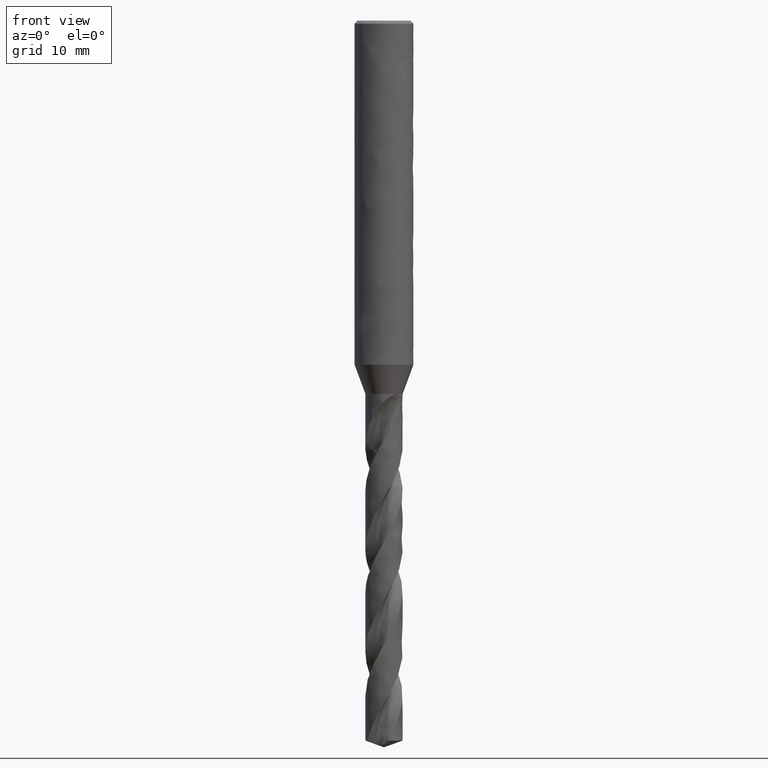
[diagram: clean part render]
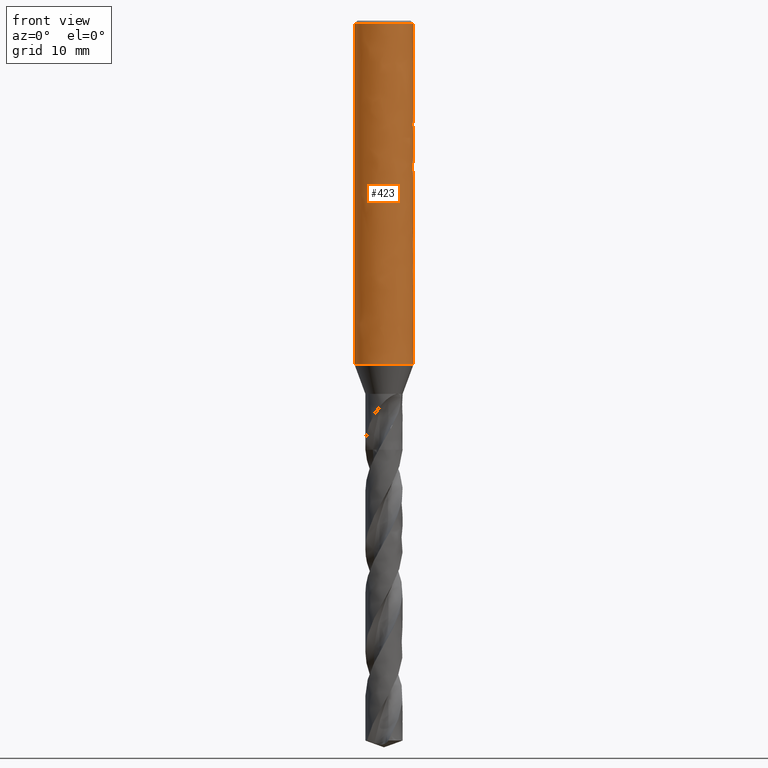
[diagram: same view with one face highlighted and labeled with its STEP entity id]
A machine part, front view. The second image highlights one B-rep face of the part: STEP entity #423.
In plain terms, the highlighted face is a freeform B-spline surface patch.
Its self-contained STEP definition (entity closure, byte-faithful):
#268 = VERTEX_POINT('', #269);
#269 = CARTESIAN_POINT('', (-3., 2.32823726219899E-15, -35.023));
#275 = EDGE_CURVE('', #268, #268, #276, .T.);
#276 = CIRCLE('', #277, 3.);
#277 = AXIS2_PLACEMENT_3D('', #278, #279, #280);
#278 = CARTESIAN_POINT('', (1.31315217170416E-31, 2.14454024232689E-15, -35.023));
#279 = DIRECTION('', (3.74939945665464E-33, 6.12323399573677E-17, -1.));
#280 = DIRECTION('', (-1., 6.12323399573677E-17, 0.));
#372 = VERTEX_POINT('', #373);
#373 = CARTESIAN_POINT('', (-3., 2.02066721859313E-16, -0.299999999999997));
#389 = EDGE_CURVE('', #372, #372, #390, .T.);
#390 = CIRCLE('', #391, 3.);
#391 = AXIS2_PLACEMENT_3D('', #392, #393, #394);
#392 = CARTESIAN_POINT('', (1.1248198369964E-33, 1.83697019872104E-17, -0.299999999999997));
#393 = DIRECTION('', (3.74939945665464E-33, 6.12323399573677E-17, -1.));
#394 = DIRECTION('', (-1., 6.12323399573677E-17, 0.));
#423 = ADVANCED_FACE('', (#424, #435), #606, .T.);
#424 = FACE_OUTER_BOUND('', #425, .T.);
#425 = EDGE_LOOP('', (#426, #432, #433, #434));
#426 = ORIENTED_EDGE('', *, *, #427, .T.);
#427 = EDGE_CURVE('', #268, #372, #428, .T.);
#428 = LINE('', #429, #430);
#429 = CARTESIAN_POINT('', (-3., 2.32823726219899E-15, -35.023));
#430 = VECTOR('', #431, 34.723);
#431 = DIRECTION('', (0., -2.12617054033968E-15, 34.723));
#432 = ORIENTED_EDGE('', *, *, #389, .T.);
#433 = ORIENTED_EDGE('', *, *, #427, .F.);
#434 = ORIENTED_EDGE('', *, *, #275, .F.);
#435 = FACE_BOUND('', #436, .T.);
#436 = EDGE_LOOP('', (#437, #517, #525, #600));
#437 = ORIENTED_EDGE('', *, *, #438, .F.);
#438 = EDGE_CURVE('', #439, #441, #443, .T.);
#439 = VERTEX_POINT('', #440);
#440 = CARTESIAN_POINT('', (-2.14242852856285, 2.1, -15.9));
#441 = VERTEX_POINT('', #442);
#442 = CARTESIAN_POINT('', (2.14242852856286, 2.1, -15.9));
#443 = B_SPLINE_CURVE_WITH_KNOTS('', 3, (#444, #445, #446, #447, #448, #449, #450, #451, #452, #453, #454, #455, #456, #457, #458, #459, #460, #461, #462, #463, #464, #465, #466, #467, #468, #469, #470, #471, #472, #473, #474, #475, #476, #477, #478, #479, #480, #481, #482, #483, #484, #485, #486, #487, #488, #489, #490, #491, #492, #493, #494, #495, #496, #497, #498, #499, #500, #501, #502, #503, #504, #505, #506, #507, #508, #509, #510, #511, #512, #513, #514, #515, #516), .UNSPECIFIED., .F., .U., (4, 3, 3, 3, 3, 3, 3, 3, 3, 3, 3, 3, 3, 3, 3, 3, 3, 3, 3, 3, 3, 3, 3, 3, 4), (0., 0.226532141220102, 0.522486989651014, 0.818712617000363, 1.01613164123477, 1.21365653787484, 1.41130126070876, 1.60907935009336, 1.80700249001341, 2.00507870652317, 2.20331049885992, 2.40169339368014, 2.59896230886553, 2.79623122405091, 2.99461411887113, 3.19284591120788, 3.39092212771765, 3.58884526763769, 3.78662335702229, 3.98426807985621, 4.18179297649628, 4.37921200073069, 4.67543762808004, 4.97139247651095, 5.19792461773105), .UNSPECIFIED.);
#444 = CARTESIAN_POINT('', (-2.14242852856285, 2.1, -15.9));
#445 = CARTESIAN_POINT('', (-2.09966946167759, 2.14362297369034, -15.8556089394693));
#446 = CARTESIAN_POINT('', (-2.05511554936735, 2.1864112283916, -15.8120672951529));
#447 = CARTESIAN_POINT('', (-2.0087677833036, 2.22819478339795, -15.7695480406738));
#448 = CARTESIAN_POINT('', (-1.94821634893922, 2.28278326528933, -15.71399839793));
#449 = CARTESIAN_POINT('', (-1.88451279376244, 2.33573606973675, -15.6601132326456));
#450 = CARTESIAN_POINT('', (-1.81770907332823, 2.38661553768947, -15.6083379099064));
#451 = CARTESIAN_POINT('', (-1.75084423195188, 2.43754155695696, -15.5565152162052));
#452 = CARTESIAN_POINT('', (-1.6807436866328, 2.48648668451198, -15.5067082925553));
#453 = CARTESIAN_POINT('', (-1.60754910566601, 2.53294016369761, -15.4594368887067));
#454 = CARTESIAN_POINT('', (-1.55876871187291, 2.56389899941746, -15.4279329486004));
#455 = CARTESIAN_POINT('', (-1.5085561938224, 2.59378846644904, -15.3975172059771));
#456 = CARTESIAN_POINT('', (-1.45698599487322, 2.6224400490275, -15.3683611437249));
#457 = CARTESIAN_POINT('', (-1.40538813971895, 2.65110699695379, -15.3391894455812));
#458 = CARTESIAN_POINT('', (-1.35237136818211, 2.67856731294511, -15.311245625015));
#459 = CARTESIAN_POINT('', (-1.29804490816719, 2.70464034880449, -15.2847135109673));
#460 = CARTESIAN_POINT('', (-1.24368549163368, 2.7307292015695, -15.2581653015195));
#461 = CARTESIAN_POINT('', (-1.18794354651529, 2.75546251726231, -15.2329964966177));
#462 = CARTESIAN_POINT('', (-1.13097137564117, 2.77865142604832, -15.2093992916021));
#463 = CARTESIAN_POINT('', (-1.07396076113039, 2.80185598222798, -15.1857861636831));
#464 = CARTESIAN_POINT('', (-1.01563414958426, 2.82354738172838, -15.1637128351876));
#465 = CARTESIAN_POINT('', (-0.95619479969747, 2.84353503671602, -15.143373249704));
#466 = CARTESIAN_POINT('', (-0.89671185696602, 2.86353735065839, -15.1230187471597));
#467 = CARTESIAN_POINT('', (-0.836016614422422, 2.88186535336629, -15.1043680361057));
#468 = CARTESIAN_POINT('', (-0.774369168024391, 2.89833614192924, -15.087607239896));
#469 = CARTESIAN_POINT('', (-0.712674042608821, 2.91481966923584, -15.0708334806465));
#470 = CARTESIAN_POINT('', (-0.649913305064561, 2.92947198918526, -15.0559231715418));
#471 = CARTESIAN_POINT('', (-0.586405693294024, 2.94212990244693, -15.0430423854271));
#472 = CARTESIAN_POINT('', (-0.522848200475703, 2.95479775766609, -15.030151482303));
#473 = CARTESIAN_POINT('', (-0.458417641638557, 2.96549204170255, -15.0192688998049));
#474 = CARTESIAN_POINT('', (-0.393487032405311, 2.97408270821927, -15.010526974047));
#475 = CARTESIAN_POINT('', (-0.32850692971699, 2.98267992298454, -15.0017783847429));
#476 = CARTESIAN_POINT('', (-0.262890170542841, 2.98918754384691, -14.9951561816426));
#477 = CARTESIAN_POINT('', (-0.197052250671389, 2.99352140638837, -14.9907460110803));
#478 = CARTESIAN_POINT('', (-0.131584030526332, 2.99783093298788, -14.9863606049525));
#479 = CARTESIAN_POINT('', (-0.065756305061796, 3., -14.9841533463251));
#480 = CARTESIAN_POINT('', (9.18485099360515E-17, 3., -14.9841533463251));
#481 = CARTESIAN_POINT('', (0.0657563050617961, 3., -14.9841533463251));
#482 = CARTESIAN_POINT('', (0.131584030526332, 2.99783093298788, -14.9863606049525));
#483 = CARTESIAN_POINT('', (0.197052250671389, 2.99352140638837, -14.9907460110803));
#484 = CARTESIAN_POINT('', (0.262890170542842, 2.98918754384691, -14.9951561816426));
#485 = CARTESIAN_POINT('', (0.328506929716991, 2.98267992298454, -15.0017783847429));
#486 = CARTESIAN_POINT('', (0.393487032405312, 2.97408270821927, -15.010526974047));
#487 = CARTESIAN_POINT('', (0.458417641638557, 2.96549204170255, -15.0192688998049));
#488 = CARTESIAN_POINT('', (0.522848200475705, 2.95479775766609, -15.030151482303));
#489 = CARTESIAN_POINT('', (0.586405693294026, 2.94212990244693, -15.0430423854271));
#490 = CARTESIAN_POINT('', (0.649913305064563, 2.92947198918526, -15.0559231715418));
#491 = CARTESIAN_POINT('', (0.712674042608822, 2.91481966923584, -15.0708334806465));
#492 = CARTESIAN_POINT('', (0.774369168024392, 2.89833614192924, -15.087607239896));
#493 = CARTESIAN_POINT('', (0.836016614422423, 2.88186535336629, -15.1043680361057));
#494 = CARTESIAN_POINT('', (0.896711856966021, 2.86353735065839, -15.1230187471597));
#495 = CARTESIAN_POINT('', (0.95619479969747, 2.84353503671602, -15.143373249704));
#496 = CARTESIAN_POINT('', (1.01563414958426, 2.82354738172838, -15.1637128351876));
#497 = CARTESIAN_POINT('', (1.07396076113039, 2.80185598222798, -15.1857861636831));
#498 = CARTESIAN_POINT('', (1.13097137564117, 2.77865142604832, -15.2093992916021));
#499 = CARTESIAN_POINT('', (1.18794354651529, 2.75546251726231, -15.2329964966177));
#500 = CARTESIAN_POINT('', (1.24368549163368, 2.7307292015695, -15.2581653015195));
#501 = CARTESIAN_POINT('', (1.29804490816719, 2.7046403488045, -15.2847135109673));
#502 = CARTESIAN_POINT('', (1.35237136818211, 2.67856731294511, -15.311245625015));
#503 = CARTESIAN_POINT('', (1.40538813971894, 2.65110699695378, -15.3391894455811));
#504 = CARTESIAN_POINT('', (1.45698599487322, 2.6224400490275, -15.3683611437249));
#505 = CARTESIAN_POINT('', (1.5085561938224, 2.59378846644904, -15.3975172059771));
#506 = CARTESIAN_POINT('', (1.5587687118729, 2.56389899941746, -15.4279329486004));
#507 = CARTESIAN_POINT('', (1.60754910566601, 2.53294016369761, -15.4594368887067));
#508 = CARTESIAN_POINT('', (1.6807436866328, 2.48648668451198, -15.5067082925553));
#509 = CARTESIAN_POINT('', (1.75084423195188, 2.43754155695696, -15.5565152162052));
#510 = CARTESIAN_POINT('', (1.81770907332823, 2.38661553768947, -15.6083379099064));
#511 = CARTESIAN_POINT('', (1.88451279376244, 2.33573606973675, -15.6601132326456));
#512 = CARTESIAN_POINT('', (1.94821634893922, 2.28278326528933, -15.71399839793));
#513 = CARTESIAN_POINT('', (2.0087677833036, 2.22819478339795, -15.7695480406737));
#514 = CARTESIAN_POINT('', (2.05511554936736, 2.1864112283916, -15.8120672951529));
#515 = CARTESIAN_POINT('', (2.09966946167759, 2.14362297369034, -15.8556089394693));
#516 = CARTESIAN_POINT('', (2.14242852856286, 2.1, -15.9));
#517 = ORIENTED_EDGE('', *, *, #518, .T.);
#518 = EDGE_CURVE('', #439, #519, #521, .T.);
#519 = VERTEX_POINT('', #520);
#520 = CARTESIAN_POINT('', (-2.14242852856285, 2.1, -20.1));
#521 = LINE('', #522, #523);
#522 = CARTESIAN_POINT('', (-2.14242852856285, 2.1, -15.9));
#523 = VECTOR('', #524, 4.2);
#524 = DIRECTION('', (0., 0., -4.2));
#525 = ORIENTED_EDGE('', *, *, #526, .T.);
#526 = EDGE_CURVE('', #519, #527, #529, .T.);
#527 = VERTEX_POINT('', #528);
#528 = CARTESIAN_POINT('', (2.14242852856286, 2.1, -20.1));
#529 = B_SPLINE_CURVE_WITH_KNOTS('', 3, (#530, #531, #532, #533, #534, #535, #536, #537, #538, #539, #540, #541, #542, #543, #544, #545, #546, #547, #548, #549, #550, #551, #552, #553, #554, #555, #556, #557, #558, #559, #560, #561, #562, #563, #564, #565, #566, #567, #568, #569, #570, #571, #572, #573, #574, #575, #576, #577, #578, #579, #580, #581, #582, #583, #584, #585, #586, #587, #588, #589, #590, #591, #592, #593, #594, #595, #596, #597, #598, #599), .UNSPECIFIED., .F., .U., (4, 3, 3, 3, 3, 3, 3, 3, 3, 3, 3, 3, 3, 3, 3, 3, 3, 3, 3, 3, 3, 3, 3, 4), (0., 0.295660747419769, 0.591176839852674, 0.886518626925894, 1.18164841836716, 1.47652016794506, 1.67307726230278, 1.86952243409268, 2.06584587187348, 2.26204020012183, 2.39294997035299, 2.59879551853109, 2.79606443371648, 2.9944473285367, 3.19267912087344, 3.39075533738321, 3.58867847730326, 3.78645656668786, 3.98410128952178, 4.18162618616184, 4.37904521039626, 4.67527083774561, 4.97122568617652, 5.19775782739663), .UNSPECIFIED.);
#530 = CARTESIAN_POINT('', (-2.14242852856285, 2.1, -20.1));
#531 = CARTESIAN_POINT('', (-2.08662109388193, 2.15693497150777, -20.157937447925));
#532 = CARTESIAN_POINT('', (-2.02774367313634, 2.21245994000831, -20.2144400663657));
#533 = CARTESIAN_POINT('', (-1.96580397010841, 2.26618947820047, -20.269115641651));
#534 = CARTESIAN_POINT('', (-1.90389457170158, 2.31989272867704, -20.3237644663626));
#535 = CARTESIAN_POINT('', (-1.8388216153995, 2.37189080900499, -20.3766780973248));
#536 = CARTESIAN_POINT('', (-1.77065397516674, 2.42173171516323, -20.4273965719039));
#537 = CARTESIAN_POINT('', (-1.70252654250763, 2.47154322347377, -20.4780851310158));
#538 = CARTESIAN_POINT('', (-1.63117078258686, 2.51929762113425, -20.5266803591222));
#539 = CARTESIAN_POINT('', (-1.55675381487313, 2.56447217958794, -20.572650323779));
#540 = CARTESIAN_POINT('', (-1.48239026348173, 2.60961431185107, -20.6185872913044));
#541 = CARTESIAN_POINT('', (-1.40478985624159, 2.6522855246488, -20.6620098329141));
#542 = CARTESIAN_POINT('', (-1.32426732289553, 2.69189822569708, -20.7023200103564));
#543 = CARTESIAN_POINT('', (-1.24381519309784, 2.73147629203384, -20.7425949432603));
#544 = CARTESIAN_POINT('', (-1.16021288035591, 2.76811040114363, -20.7798740835253));
#545 = CARTESIAN_POINT('', (-1.07398043712975, 2.80117225829876, -20.8135180737918));
#546 = CARTESIAN_POINT('', (-1.01649918128153, 2.82321079737816, -20.8359446540893));
#547 = CARTESIAN_POINT('', (-0.957748596561571, 2.84370285567261, -20.856797524107));
#548 = CARTESIAN_POINT('', (-0.897945836518631, 2.86246279882885, -20.8758877809545));
#549 = CARTESIAN_POINT('', (-0.838177129067326, 2.88121205979111, -20.8949671675225));
#550 = CARTESIAN_POINT('', (-0.777257254947388, 2.89826163823775, -20.9123169445968));
#551 = CARTESIAN_POINT('', (-0.715458762567489, 2.91343761887321, -20.9277601346871));
#552 = CARTESIAN_POINT('', (-0.653698565749476, 2.92860419519017, -20.9431937548733));
#553 = CARTESIAN_POINT('', (-0.590947680355503, 2.94192632660259, -20.9567504542887));
#554 = CARTESIAN_POINT('', (-0.527533495262701, 2.9532538684265, -20.9682774445929));
#555 = CARTESIAN_POINT('', (-0.464161013676522, 2.96457396084119, -20.9797968543232));
#556 = CARTESIAN_POINT('', (-0.400001379736574, 2.97392352783086, -20.989311042813));
#557 = CARTESIAN_POINT('', (-0.335429955765135, 2.98118881400953, -20.9967042517405));
#558 = CARTESIAN_POINT('', (-0.292344967778635, 2.9860365430586, -21.0016373366599));
#559 = CARTESIAN_POINT('', (-0.249027925527357, 2.98996321515988, -21.0056331472199));
#560 = CARTESIAN_POINT('', (-0.205599414331943, 2.99294652154468, -21.0086689818526));
#561 = CARTESIAN_POINT('', (-0.137311419648324, 2.99763754145158, -21.0134425983904));
#562 = CARTESIAN_POINT('', (-0.0686151827260388, 3., -21.0158466536749));
#563 = CARTESIAN_POINT('', (-3.46086516886445E-15, 3., -21.0158466536749));
#564 = CARTESIAN_POINT('', (0.0657563050617912, 3., -21.0158466536749));
#565 = CARTESIAN_POINT('', (0.131584030526326, 2.99783093298788, -21.0136393950475));
#566 = CARTESIAN_POINT('', (0.197052250671382, 2.99352140638837, -21.0092539889197));
#567 = CARTESIAN_POINT('', (0.262890170542834, 2.98918754384691, -21.0048438183574));
#568 = CARTESIAN_POINT('', (0.328506929716983, 2.98267992298454, -20.9982216152571));
#569 = CARTESIAN_POINT('', (0.393487032405304, 2.97408270821927, -20.989473025953));
#570 = CARTESIAN_POINT('', (0.45841764163855, 2.96549204170255, -20.9807311001951));
#571 = CARTESIAN_POINT('', (0.522848200475697, 2.95479775766609, -20.969848517697));
#572 = CARTESIAN_POINT('', (0.586405693294017, 2.94212990244693, -20.9569576145729));
#573 = CARTESIAN_POINT('', (0.649913305064554, 2.92947198918526, -20.9440768284582));
#574 = CARTESIAN_POINT('', (0.712674042608815, 2.91481966923585, -20.9291665193535));
#575 = CARTESIAN_POINT('', (0.774369168024384, 2.89833614192924, -20.912392760104));
#576 = CARTESIAN_POINT('', (0.836016614422416, 2.88186535336629, -20.8956319638943));
#577 = CARTESIAN_POINT('', (0.896711856966013, 2.86353735065839, -20.8769812528403));
#578 = CARTESIAN_POINT('', (0.956194799697462, 2.84353503671602, -20.856626750296));
#579 = CARTESIAN_POINT('', (1.01563414958425, 2.82354738172838, -20.8362871648124));
#580 = CARTESIAN_POINT('', (1.07396076113038, 2.80185598222798, -20.8142138363169));
#581 = CARTESIAN_POINT('', (1.13097137564117, 2.77865142604833, -20.7906007083979));
#582 = CARTESIAN_POINT('', (1.18794354651528, 2.75546251726231, -20.7670035033823));
#583 = CARTESIAN_POINT('', (1.24368549163367, 2.73072920156951, -20.7418346984805));
#584 = CARTESIAN_POINT('', (1.29804490816718, 2.7046403488045, -20.7152864890327));
#585 = CARTESIAN_POINT('', (1.3523713681821, 2.67856731294512, -20.688754374985));
#586 = CARTESIAN_POINT('', (1.40538813971894, 2.65110699695379, -20.6608105544189));
#587 = CARTESIAN_POINT('', (1.45698599487321, 2.6224400490275, -20.6316388562751));
#588 = CARTESIAN_POINT('', (1.5085561938224, 2.59378846644904, -20.6024827940229));
#589 = CARTESIAN_POINT('', (1.5587687118729, 2.56389899941747, -20.5720670513996));
#590 = CARTESIAN_POINT('', (1.607549105666, 2.53294016369761, -20.5405631112933));
#591 = CARTESIAN_POINT('', (1.6807436866328, 2.48648668451199, -20.4932917074447));
#592 = CARTESIAN_POINT('', (1.75084423195188, 2.43754155695696, -20.4434847837948));
#593 = CARTESIAN_POINT('', (1.81770907332823, 2.38661553768948, -20.3916620900936));
#594 = CARTESIAN_POINT('', (1.88451279376244, 2.33573606973675, -20.3398867673544));
#595 = CARTESIAN_POINT('', (1.94821634893922, 2.28278326528933, -20.28600160207));
#596 = CARTESIAN_POINT('', (2.00876778330359, 2.22819478339795, -20.2304519593263));
#597 = CARTESIAN_POINT('', (2.05511554936735, 2.1864112283916, -20.1879327048471));
#598 = CARTESIAN_POINT('', (2.09966946167759, 2.14362297369035, -20.1443910605307));
#599 = CARTESIAN_POINT('', (2.14242852856286, 2.1, -20.1));
#600 = ORIENTED_EDGE('', *, *, #601, .F.);
#601 = EDGE_CURVE('', #441, #527, #602, .T.);
#602 = LINE('', #603, #604);
#603 = CARTESIAN_POINT('', (2.14242852856286, 2.1, -15.9));
#604 = VECTOR('', #605, 4.2);
#605 = DIRECTION('', (4.44089209850063E-16, 4.44089209850063E-16, -4.2));
#606 = (
   BOUNDED_SURFACE ()
   B_SPLINE_SURFACE (1, 2, ((#607, #608, #609, #610, #611, #612, #613, #614, #615), (#616, #617, #618, #619, #620, #621, #622, #623, #624)), .UNSPECIFIED., .F., .T., .U.)
   B_SPLINE_SURFACE_WITH_KNOTS ((2, 2), (3, 2, 2, 2, 3), (0., 1.), (0., 4.71238898038469, 9.42477796076938, 14.1371669411541, 18.8495559215388), .UNSPECIFIED.)
   GEOMETRIC_REPRESENTATION_ITEM ()
   RATIONAL_B_SPLINE_SURFACE (((1., 0.707106781186548, 1., 0.707106781186548, 1., 0.707106781186548, 1., 0.707106781186548, 1.), (1., 0.707106781186548, 1., 0.707106781186548, 1., 0.707106781186548, 1., 0.707106781186548, 1.)))
   REPRESENTATION_ITEM ('')
   SURFACE ()
);
#607 = CARTESIAN_POINT('', (-3., 2.32823726219899E-15, -35.023));
#608 = CARTESIAN_POINT('', (-3., 3., -35.023));
#609 = CARTESIAN_POINT('', (1.23259516440783E-31, 3., -35.023));
#610 = CARTESIAN_POINT('', (3., 3., -35.023));
#611 = CARTESIAN_POINT('', (3., 2.32823726219899E-15, -35.023));
#612 = CARTESIAN_POINT('', (3., -3., -35.023));
#613 = CARTESIAN_POINT('', (3.67394039744206E-16, -3., -35.023));
#614 = CARTESIAN_POINT('', (-3., -3., -35.023));
#615 = CARTESIAN_POINT('', (-3., 2.32823726219899E-15, -35.023));
#616 = CARTESIAN_POINT('', (-3., 2.02066721859314E-16, -0.299999999999997));
#617 = CARTESIAN_POINT('', (-3., 3., -0.299999999999997));
#618 = CARTESIAN_POINT('', (0., 3., -0.299999999999997));
#619 = CARTESIAN_POINT('', (3., 3., -0.299999999999997));
#620 = CARTESIAN_POINT('', (3., 2.02066721859313E-16, -0.299999999999997));
#621 = CARTESIAN_POINT('', (3., -3., -0.299999999999997));
#622 = CARTESIAN_POINT('', (3.67394039744206E-16, -3., -0.299999999999997));
#623 = CARTESIAN_POINT('', (-3., -3., -0.299999999999997));
#624 = CARTESIAN_POINT('', (-3., 2.02066721859314E-16, -0.299999999999997));